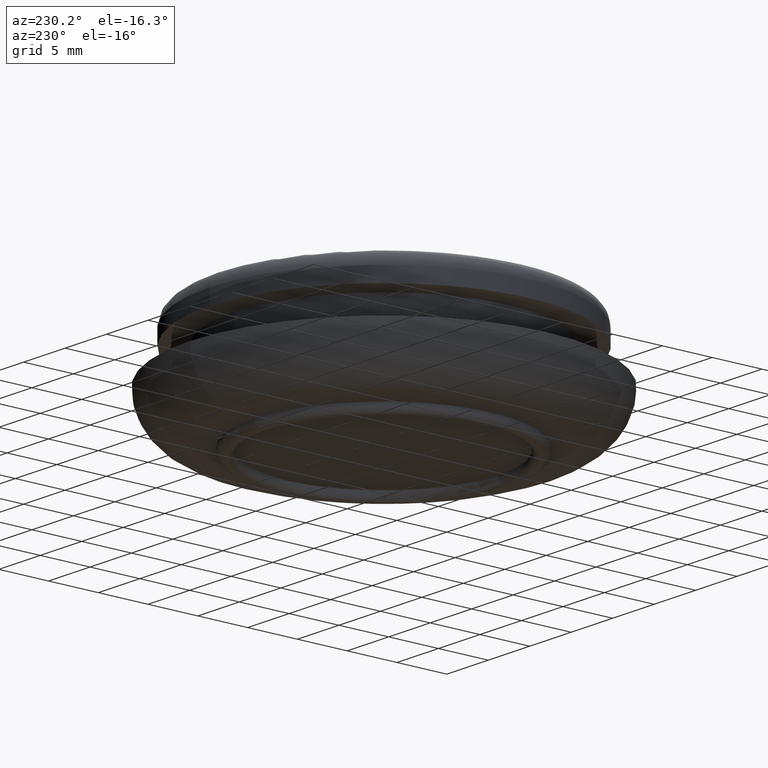
[diagram: clean part render]
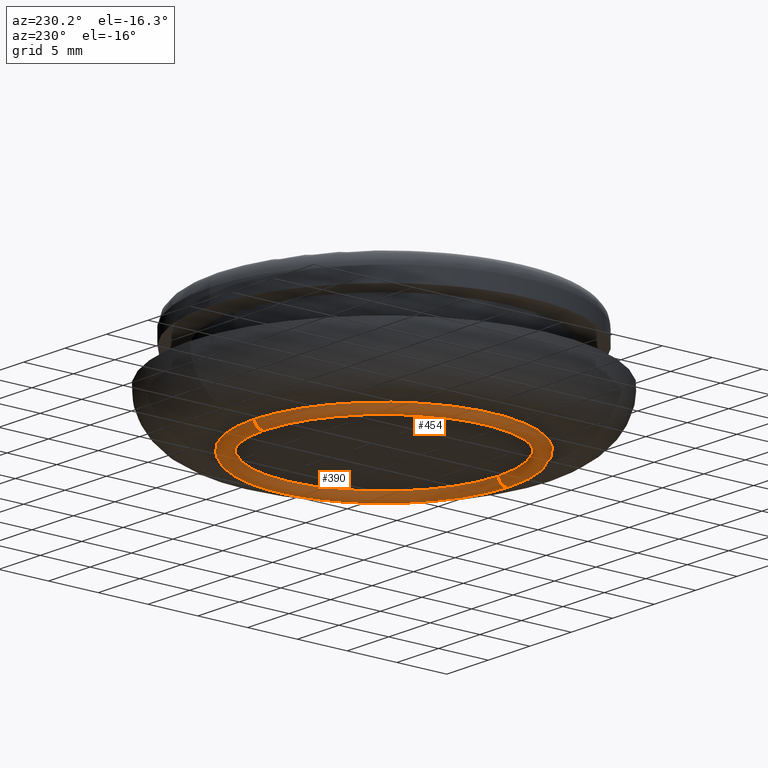
[diagram: same view with one multi-face feature highlighted, each face labeled with its STEP entity id]
A machine part, auxiliary view. The highlighted faces form ONE feature: a constant-radius fillet chain: 2 tangent blend faces with common blend radius 0.75 mm. The faces share edges in the B-rep.
Their STEP definitions:
[1] entity #454 (Torus):
#4 = CIRCLE ( 'NONE', #501, 0.7500000000000006700 ) ;
#25 = EDGE_CURVE ( 'NONE', #338, #122, #198, .T. ) ;
#28 = EDGE_CURVE ( 'NONE', #122, #441, #456, .T. ) ;
#52 = DIRECTION ( 'NONE',  ( 0.0000000000000000000, 0.0000000000000000000, 1.000000000000000000 ) ) ;
#58 = DIRECTION ( 'NONE',  ( 0.0000000000000000000, -1.000000000000000000, 0.0000000000000000000 ) ) ;
#69 = AXIS2_PLACEMENT_3D ( 'NONE', #218, #487, #52 ) ;
#73 = TOROIDAL_SURFACE ( 'NONE', #217, 12.24999999999999600, 0.7499999999999997800 ) ;
#99 = DIRECTION ( 'NONE',  ( 0.0000000000000000000, -1.000000000000000000, 0.0000000000000000000 ) ) ;
#101 = CARTESIAN_POINT ( 'NONE',  ( 0.0000000000000000000, 11.25000000000000000, 0.0000000000000000000 ) ) ;
#109 = ORIENTED_EDGE ( 'NONE', *, *, #25, .T. ) ;
#120 = EDGE_CURVE ( 'NONE', #338, #493, #4, .T. ) ;
#122 = VERTEX_POINT ( 'NONE', #528 ) ;
#136 = CARTESIAN_POINT ( 'NONE',  ( 0.0000000000000000000, 11.25000000000000000, -13.00000000000000000 ) ) ;
#160 = CARTESIAN_POINT ( 'NONE',  ( 1.592040838891559100E-015, 11.25000000000000000, 13.00000000000000000 ) ) ;
#198 = CIRCLE ( 'NONE', #650, 11.49999999999999600 ) ;
#217 = AXIS2_PLACEMENT_3D ( 'NONE', #101, #99, #287 ) ;
#218 = CARTESIAN_POINT ( 'NONE',  ( 0.0000000000000000000, 11.25000000000000000, -12.24999999999999600 ) ) ;
#230 = ORIENTED_EDGE ( 'NONE', *, *, #120, .F. ) ;
#235 = DIRECTION ( 'NONE',  ( 0.0000000000000000000, 0.0000000000000000000, -1.000000000000000000 ) ) ;
#237 = CARTESIAN_POINT ( 'NONE',  ( 1.408343819019456000E-015, 11.25000000000000000, 11.49999999999999600 ) ) ;
#259 = EDGE_LOOP ( 'NONE', ( #230, #109, #272, #334 ) ) ;
#272 = ORIENTED_EDGE ( 'NONE', *, *, #28, .T. ) ;
#279 = EDGE_CURVE ( 'NONE', #493, #441, #651, .T. ) ;
#287 = DIRECTION ( 'NONE',  ( 0.0000000000000000000, 0.0000000000000000000, -1.000000000000000000 ) ) ;
#334 = ORIENTED_EDGE ( 'NONE', *, *, #279, .F. ) ;
#338 = VERTEX_POINT ( 'NONE', #237 ) ;
#349 = FACE_OUTER_BOUND ( 'NONE', #259, .T. ) ;
#365 = DIRECTION ( 'NONE',  ( 1.000000000000000000, 0.0000000000000000000, -1.224646799147353200E-016 ) ) ;
#407 = AXIS2_PLACEMENT_3D ( 'NONE', #408, #58, #235 ) ;
#408 = CARTESIAN_POINT ( 'NONE',  ( 0.0000000000000000000, 11.25000000000000000, 0.0000000000000000000 ) ) ;
#441 = VERTEX_POINT ( 'NONE', #136 ) ;
#454 = ADVANCED_FACE ( 'NONE', ( #349 ), #73, .T. ) ;
#456 = CIRCLE ( 'NONE', #69, 0.7500000000000006700 ) ;
#487 = DIRECTION ( 'NONE',  ( -1.000000000000000000, -0.0000000000000000000, -0.0000000000000000000 ) ) ;
#493 = VERTEX_POINT ( 'NONE', #160 ) ;
#501 = AXIS2_PLACEMENT_3D ( 'NONE', #512, #365, #589 ) ;
#512 = CARTESIAN_POINT ( 'NONE',  ( 1.500192328955507300E-015, 11.25000000000000000, 12.24999999999999600 ) ) ;
#528 = CARTESIAN_POINT ( 'NONE',  ( 0.0000000000000000000, 11.25000000000000000, -11.49999999999999600 ) ) ;
#549 = DIRECTION ( 'NONE',  ( 0.0000000000000000000, 0.0000000000000000000, -1.000000000000000000 ) ) ;
#558 = DIRECTION ( 'NONE',  ( 0.0000000000000000000, -1.000000000000000000, 0.0000000000000000000 ) ) ;
#589 = DIRECTION ( 'NONE',  ( -1.224646799147352000E-016, 0.0000000000000000000, -1.000000000000000000 ) ) ;
#604 = CARTESIAN_POINT ( 'NONE',  ( 0.0000000000000000000, 11.25000000000000000, 0.0000000000000000000 ) ) ;
#650 = AXIS2_PLACEMENT_3D ( 'NONE', #604, #558, #549 ) ;
#651 = CIRCLE ( 'NONE', #407, 13.00000000000000000 ) ;
[2] entity #390 (Torus):
#4 = CIRCLE ( 'NONE', #501, 0.7500000000000006700 ) ;
#16 = CARTESIAN_POINT ( 'NONE',  ( 0.0000000000000000000, 11.25000000000000000, 0.0000000000000000000 ) ) ;
#28 = EDGE_CURVE ( 'NONE', #122, #441, #456, .T. ) ;
#52 = DIRECTION ( 'NONE',  ( 0.0000000000000000000, 0.0000000000000000000, 1.000000000000000000 ) ) ;
#69 = AXIS2_PLACEMENT_3D ( 'NONE', #218, #487, #52 ) ;
#105 = CIRCLE ( 'NONE', #187, 13.00000000000000000 ) ;
#119 = ORIENTED_EDGE ( 'NONE', *, *, #377, .F. ) ;
#120 = EDGE_CURVE ( 'NONE', #338, #493, #4, .T. ) ;
#122 = VERTEX_POINT ( 'NONE', #528 ) ;
#126 = TOROIDAL_SURFACE ( 'NONE', #254, 12.24999999999999600, 0.7499999999999997800 ) ;
#136 = CARTESIAN_POINT ( 'NONE',  ( 0.0000000000000000000, 11.25000000000000000, -13.00000000000000000 ) ) ;
#145 = ORIENTED_EDGE ( 'NONE', *, *, #120, .T. ) ;
#160 = CARTESIAN_POINT ( 'NONE',  ( 1.592040838891559100E-015, 11.25000000000000000, 13.00000000000000000 ) ) ;
#187 = AXIS2_PLACEMENT_3D ( 'NONE', #615, #524, #231 ) ;
#205 = EDGE_LOOP ( 'NONE', ( #632, #145, #119, #486 ) ) ;
#218 = CARTESIAN_POINT ( 'NONE',  ( 0.0000000000000000000, 11.25000000000000000, -12.24999999999999600 ) ) ;
#231 = DIRECTION ( 'NONE',  ( 0.0000000000000000000, 0.0000000000000000000, -1.000000000000000000 ) ) ;
#237 = CARTESIAN_POINT ( 'NONE',  ( 1.408343819019456000E-015, 11.25000000000000000, 11.49999999999999600 ) ) ;
#254 = AXIS2_PLACEMENT_3D ( 'NONE', #546, #599, #617 ) ;
#336 = CIRCLE ( 'NONE', #451, 11.49999999999999600 ) ;
#338 = VERTEX_POINT ( 'NONE', #237 ) ;
#365 = DIRECTION ( 'NONE',  ( 1.000000000000000000, 0.0000000000000000000, -1.224646799147353200E-016 ) ) ;
#377 = EDGE_CURVE ( 'NONE', #441, #493, #105, .T. ) ;
#390 = ADVANCED_FACE ( 'NONE', ( #618 ), #126, .T. ) ;
#441 = VERTEX_POINT ( 'NONE', #136 ) ;
#451 = AXIS2_PLACEMENT_3D ( 'NONE', #16, #496, #597 ) ;
#456 = CIRCLE ( 'NONE', #69, 0.7500000000000006700 ) ;
#482 = EDGE_CURVE ( 'NONE', #122, #338, #336, .T. ) ;
#486 = ORIENTED_EDGE ( 'NONE', *, *, #28, .F. ) ;
#487 = DIRECTION ( 'NONE',  ( -1.000000000000000000, -0.0000000000000000000, -0.0000000000000000000 ) ) ;
#493 = VERTEX_POINT ( 'NONE', #160 ) ;
#496 = DIRECTION ( 'NONE',  ( 0.0000000000000000000, -1.000000000000000000, 0.0000000000000000000 ) ) ;
#501 = AXIS2_PLACEMENT_3D ( 'NONE', #512, #365, #589 ) ;
#512 = CARTESIAN_POINT ( 'NONE',  ( 1.500192328955507300E-015, 11.25000000000000000, 12.24999999999999600 ) ) ;
#524 = DIRECTION ( 'NONE',  ( 0.0000000000000000000, -1.000000000000000000, 0.0000000000000000000 ) ) ;
#528 = CARTESIAN_POINT ( 'NONE',  ( 0.0000000000000000000, 11.25000000000000000, -11.49999999999999600 ) ) ;
#546 = CARTESIAN_POINT ( 'NONE',  ( 0.0000000000000000000, 11.25000000000000000, 0.0000000000000000000 ) ) ;
#589 = DIRECTION ( 'NONE',  ( -1.224646799147352000E-016, 0.0000000000000000000, -1.000000000000000000 ) ) ;
#597 = DIRECTION ( 'NONE',  ( 0.0000000000000000000, 0.0000000000000000000, -1.000000000000000000 ) ) ;
#599 = DIRECTION ( 'NONE',  ( 0.0000000000000000000, -1.000000000000000000, 0.0000000000000000000 ) ) ;
#615 = CARTESIAN_POINT ( 'NONE',  ( 0.0000000000000000000, 11.25000000000000000, 0.0000000000000000000 ) ) ;
#617 = DIRECTION ( 'NONE',  ( 0.0000000000000000000, 0.0000000000000000000, -1.000000000000000000 ) ) ;
#618 = FACE_OUTER_BOUND ( 'NONE', #205, .T. ) ;
#632 = ORIENTED_EDGE ( 'NONE', *, *, #482, .T. ) ;